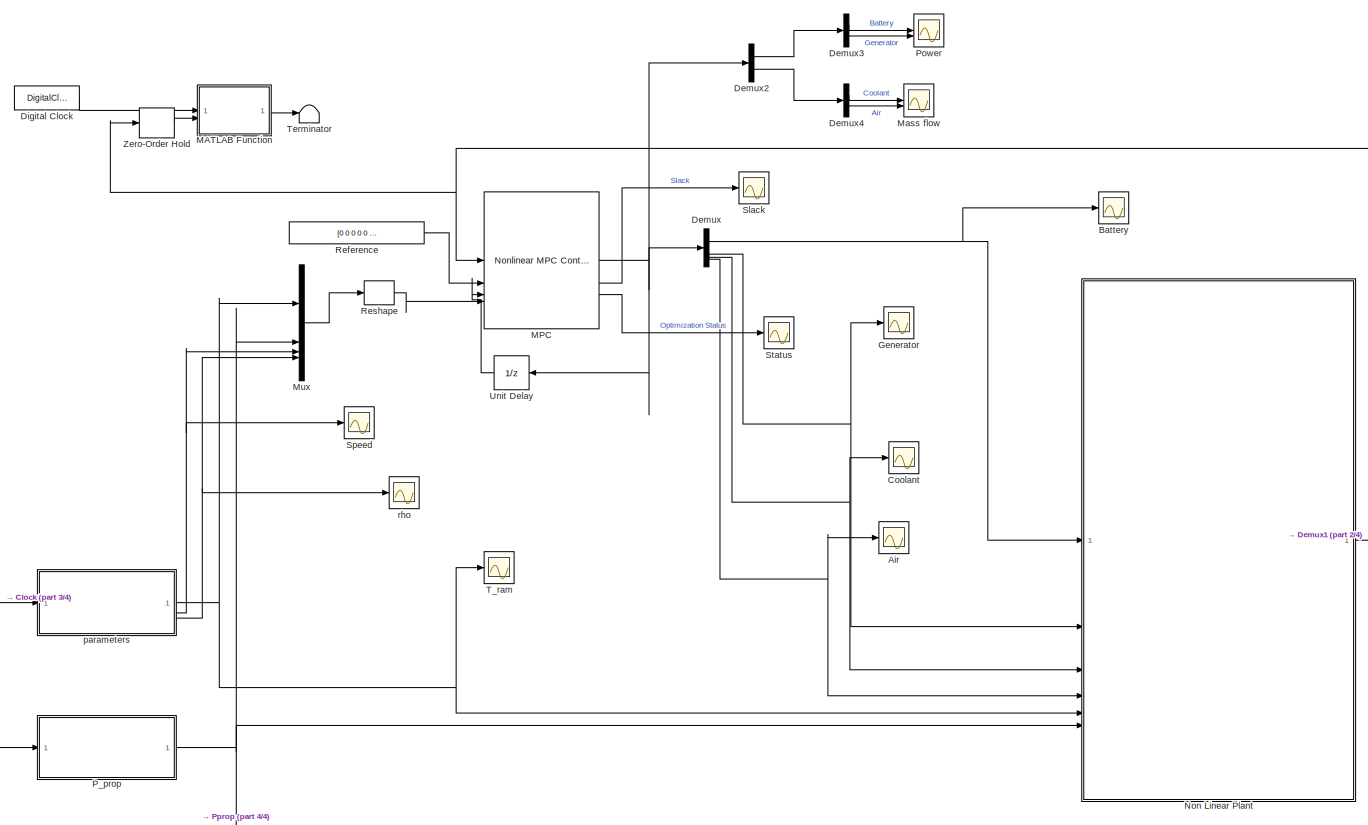
[diagram: root canvas - part 1/4, center side, full height]
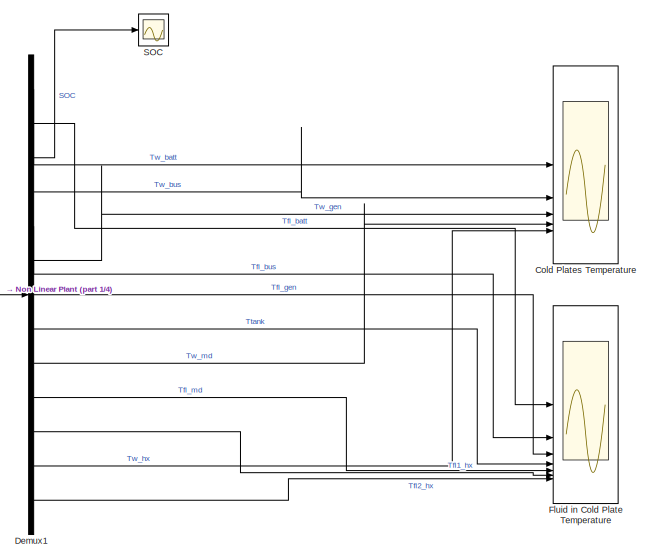
[diagram: root canvas - part 2/4, middle right region]
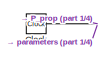
[diagram: root canvas - part 3/4, bottom left region]
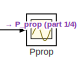
[diagram: root canvas - part 4/4, bottom left region]
MODEL slx_37117e313b44
KIND model
CONFIG AbsTol = auto
CONFIG EnableMultiTasking = off
CONFIG FixedStep = 0.5
CONFIG MaxStep = auto
CONFIG MinStep = auto
CONFIG RelTol = 1e-6
CONFIG SampleTimeConstraint = Unconstrained
CONFIG SolverName = VariableStepAuto
CONFIG StartTime = 0.0
CONFIG StopTime = 4440
BLOCK [Scope] Air
  Floating = off
  NumInputPorts = 1
  ScopeSpecificationString = Simulink.scopes.TimeScopeBlockCfg('CurrentConfiguration', extmgr.ConfigurationSet(extmgr.Configuration('Core','General UI',true),extmgr.Configuration('Core','Source UI',true),extmgr.Configuration('Sources','WiredSimulink',true,'DataLoggingVariableName','ScopeData5'),extmgr.Configuration('Visuals','Time Domain',true,'SerializedDisplays',{struct('MinYLimReal','4.42138','MaxYLimReal','7.45302','YLabe...<+1364ch>
BLOCK [Scope] Battery
  Floating = off
  NumInputPorts = 1
  ScopeSpecificationString = Simulink.scopes.TimeScopeBlockCfg('CurrentConfiguration', extmgr.ConfigurationSet(extmgr.Configuration('Core','General UI',true),extmgr.Configuration('Core','Source UI',true),extmgr.Configuration('Sources','WiredSimulink',true,'DataLoggingVariableName','ScopeData2'),extmgr.Configuration('Visuals','Time Domain',true,'SerializedDisplays',{struct('MinYLimReal','-59299.41706','MaxYLimReal','533694.753...<+1400ch>
BLOCK [Clock] Clock
BLOCK [Scope] Cold Plates Temperature
  Floating = off
  NumInputPorts = 5
  ScopeSpecificationString = Simulink.scopes.TimeScopeBlockCfg('CurrentConfiguration', extmgr.ConfigurationSet(extmgr.Configuration('Core','General UI',true,'FigureColor',[1 1 1]),extmgr.Configuration('Core','Source UI',true),extmgr.Configuration('Sources','WiredSimulink',true,'DataLoggingVariableName','ScopeData1'),extmgr.Configuration('Visuals','Time Domain',true,'SerializedDisplays',{struct('MinYLimReal','19.38609','MaxYLi...<+1699ch>
BLOCK [Scope] Coolant
  Floating = off
  NumInputPorts = 1
  ScopeSpecificationString = Simulink.scopes.TimeScopeBlockCfg('CurrentConfiguration', extmgr.ConfigurationSet(extmgr.Configuration('Core','General UI',true),extmgr.Configuration('Core','Source UI',true),extmgr.Configuration('Sources','WiredSimulink',true,'DataLoggingVariableName','ScopeData4'),extmgr.Configuration('Visuals','Time Domain',true,'SerializedDisplays',{struct('MinYLimReal','2.09667','MaxYLimReal','4.70696','YLabe...<+1364ch>
BLOCK [Demux] Demux
BLOCK [Demux] Demux1
  Outputs = 13
BLOCK [Demux] Demux2
  Outputs = 2
BLOCK [Demux] Demux3
  Outputs = 2
BLOCK [Demux] Demux4
  Outputs = 2
BLOCK [DigitalClock] Digital Clock
  SampleTime = Ts
BLOCK [Scope] Fluid in Cold Plate Temperature
  Floating = off
  NumInputPorts = 7
  ScopeSpecificationString = Simulink.scopes.TimeScopeBlockCfg('CurrentConfiguration', extmgr.ConfigurationSet(extmgr.Configuration('Core','General UI',true,'FigureColor',[1 1 1]),extmgr.Configuration('Core','Source UI',true),extmgr.Configuration('Sources','WiredSimulink',true,'DataLoggingVariableName','ScopeData2'),extmgr.Configuration('Visuals','Time Domain',true,'SerializedDisplays',{struct('MinYLimReal','19.84413','MaxYLi...<+1769ch>
BLOCK [Scope] Generator
  Floating = off
  NumInputPorts = 1
  ScopeSpecificationString = Simulink.scopes.TimeScopeBlockCfg('CurrentConfiguration', extmgr.ConfigurationSet(extmgr.Configuration('Core','General UI',true),extmgr.Configuration('Core','Source UI',true),extmgr.Configuration('Sources','WiredSimulink',true,'DataLoggingVariableName','ScopeData3'),extmgr.Configuration('Visuals','Time Domain',true,'SerializedDisplays',{struct('MinYLimReal','-26095.65152','MaxYLimReal','528032.850...<+1400ch>
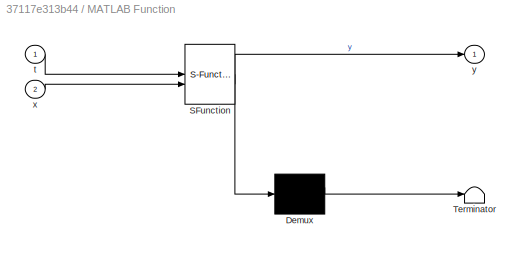
BLOCK [SubSystem] MATLAB Function
  ErrorFcn = Stateflow.Translate.translate
  LibrarySourceBlock = simulink/User-Defined\nFunctions/MATLAB Function
  PermitHierarchicalResolution = ExplicitOnly
  SFBlockType = MATLAB Function
  TreatAsAtomicUnit = on
BLOCK [Demux] MATLAB Function/ Demux 
  Outputs = 1
BLOCK [S-Function] MATLAB Function/ SFunction 
  EnableBusSupport = on
  FunctionName = sf_sfun
  PortCounts = [2 2]
  SFcnIsStateOwnerBlock = off
  SFunctionDeploymentMode = off
  Tag = Stateflow S-Function 3
BLOCK [Terminator] MATLAB Function/ Terminator 
BLOCK [Inport] MATLAB Function/t
BLOCK [Inport] MATLAB Function/x
  Port = 2
BLOCK [Outport] MATLAB Function/y
BLOCK [Reference] MPC  REF=mpclib/Nonlinear MPC Controller  (lib defined in mdl_ae329e0e0455)
  SourceBlock = mpclib/Nonlinear MPC Controller
  SourceType = NonlinearMPC
BLOCK [Scope] Mass flow
  Floating = off
  NumInputPorts = 2
  ScopeSpecificationString = Simulink.scopes.TimeScopeBlockCfg('CurrentConfiguration', extmgr.ConfigurationSet(extmgr.Configuration('Core','General UI',true,'FigureColor',[1 1 1]),extmgr.Configuration('Core','Source UI',true),extmgr.Configuration('Sources','WiredSimulink',true,'DataLoggingVariableName','scopeData_flow','DataLogging',true,'DataLoggingSaveFormat','StructureWithTime'),extmgr.Configuration('Visuals','Time Domain'...<+1763ch>
BLOCK [Mux] Mux
  DisplayOption = bar
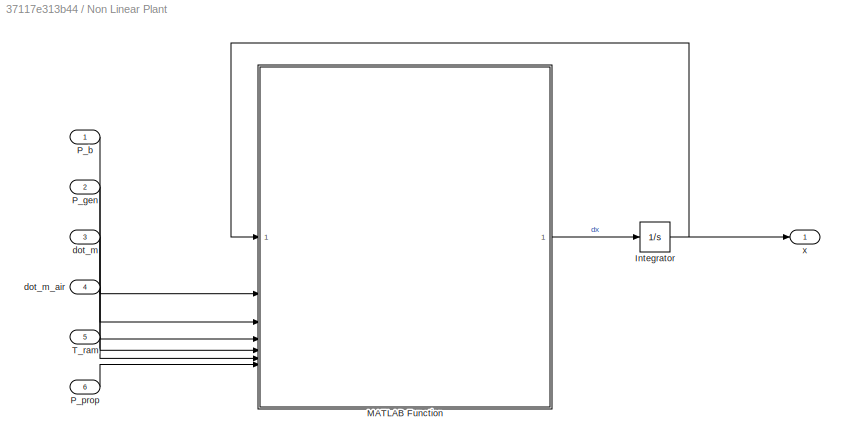
BLOCK [SubSystem] Non Linear Plant
BLOCK [Integrator] Non Linear Plant/Integrator
  InitialCondition = [20;20;1;20;20;20;20;20;20;20;20;20;20]
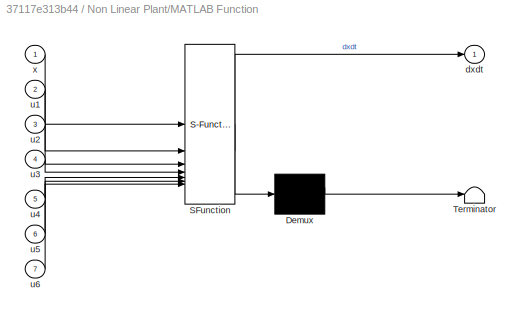
BLOCK [SubSystem] Non Linear Plant/MATLAB Function
  ErrorFcn = Stateflow.Translate.translate
  LibrarySourceBlock = simulink/User-Defined\nFunctions/MATLAB Function
  PermitHierarchicalResolution = ExplicitOnly
  SFBlockType = MATLAB Function
  TreatAsAtomicUnit = on
BLOCK [Demux] Non Linear Plant/MATLAB Function/ Demux 
  Outputs = 1
BLOCK [S-Function] Non Linear Plant/MATLAB Function/ SFunction 
  EnableBusSupport = on
  FunctionName = sf_sfun
  PortCounts = [7 2]
  SFcnIsStateOwnerBlock = off
  SFunctionDeploymentMode = off
  Tag = Stateflow S-Function 2
BLOCK [Terminator] Non Linear Plant/MATLAB Function/ Terminator 
BLOCK [Outport] Non Linear Plant/MATLAB Function/dxdt
BLOCK [Inport] Non Linear Plant/MATLAB Function/u1
  Port = 2
BLOCK [Inport] Non Linear Plant/MATLAB Function/u2
  Port = 3
BLOCK [Inport] Non Linear Plant/MATLAB Function/u3
  Port = 4
BLOCK [Inport] Non Linear Plant/MATLAB Function/u4
  Port = 5
BLOCK [Inport] Non Linear Plant/MATLAB Function/u5
  Port = 6
BLOCK [Inport] Non Linear Plant/MATLAB Function/u6
  Port = 7
BLOCK [Inport] Non Linear Plant/MATLAB Function/x
BLOCK [Inport] Non Linear Plant/P_b
BLOCK [Inport] Non Linear Plant/P_gen
  Port = 2
BLOCK [Inport] Non Linear Plant/P_prop
  Port = 6
BLOCK [Inport] Non Linear Plant/T_ram
  Port = 5
BLOCK [Inport] Non Linear Plant/dot_m
  Port = 3
BLOCK [Inport] Non Linear Plant/dot_m_air
  Port = 4
BLOCK [Outport] Non Linear Plant/x
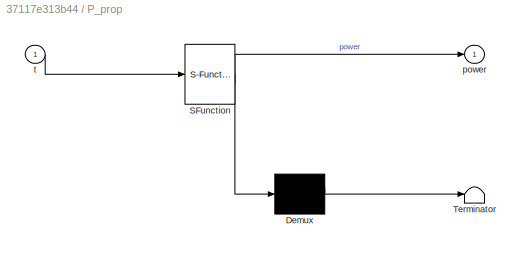
BLOCK [SubSystem] P_prop
  ErrorFcn = Stateflow.Translate.translate
  LibrarySourceBlock = simulink/User-Defined\nFunctions/MATLAB Function
  PermitHierarchicalResolution = ExplicitOnly
  SFBlockType = MATLAB Function
  TreatAsAtomicUnit = on
BLOCK [Demux] P_prop/ Demux 
  Outputs = 1
BLOCK [S-Function] P_prop/ SFunction 
  EnableBusSupport = on
  FunctionName = sf_sfun
  PortCounts = [1 2]
  SFcnIsStateOwnerBlock = off
  SFunctionDeploymentMode = off
  Tag = Stateflow S-Function 1
BLOCK [Terminator] P_prop/ Terminator 
BLOCK [Outport] P_prop/power
BLOCK [Inport] P_prop/t
BLOCK [Scope] Power
  Floating = off
  NumInputPorts = 2
  ScopeSpecificationString = Simulink.scopes.TimeScopeBlockCfg('CurrentConfiguration', extmgr.ConfigurationSet(extmgr.Configuration('Core','General UI',true,'FigureColor',[1 1 1]),extmgr.Configuration('Core','Source UI',true),extmgr.Configuration('Sources','WiredSimulink',true,'DataLoggingVariableName','scopeData_Power','DataLogging',true,'DataLoggingSaveFormat','StructureWithTime'),extmgr.Configuration('Visuals','Time Domain...<+1838ch>
BLOCK [Scope] Pprop
  Floating = off
  NumInputPorts = 1
  ScopeSpecificationString = Simulink.scopes.TimeScopeBlockCfg('CurrentConfiguration', extmgr.ConfigurationSet(extmgr.Configuration('Core','General UI',true),extmgr.Configuration('Core','Source UI',true),extmgr.Configuration('Sources','WiredSimulink',true,'DataLoggingVariableName','ScopeData1'),extmgr.Configuration('Visuals','Time Domain',true,'SerializedDisplays',{struct('MinYLimReal','-56625.00000','MaxYLimReal','712958.333...<+1726ch>
BLOCK [Constant] Reference
  Value = [0 0 0 0 0 0 0 0 0 0 0 0 0]
  VectorParams1D = off
BLOCK [Reshape] Reshape
  OutputDimensionality = Row vector (2-D)
BLOCK [Scope] SOC
  Floating = off
  NumInputPorts = 1
  ScopeSpecificationString = Simulink.scopes.TimeScopeBlockCfg('CurrentConfiguration', extmgr.ConfigurationSet(extmgr.Configuration('Core','General UI',true,'FigureColor',[1 1 1]),extmgr.Configuration('Core','Source UI',true),extmgr.Configuration('Sources','WiredSimulink',true,'DataLoggingVariableName','ScopeData3'),extmgr.Configuration('Visuals','Time Domain',true,'SerializedDisplays',{struct('MinYLimReal','0.32817','MaxYLim...<+1655ch>
BLOCK [Scope] Slack
  Floating = off
  NumInputPorts = 1
  ScopeSpecificationString = Simulink.scopes.TimeScopeBlockCfg('CurrentConfiguration', extmgr.ConfigurationSet(extmgr.Configuration('Core','General UI',true,'FigureColor',[1 1 1]),extmgr.Configuration('Core','Source UI',true),extmgr.Configuration('Sources','WiredSimulink',true,'DataLoggingVariableName','ScopeData1'),extmgr.Configuration('Visuals','Time Domain',true,'SerializedDisplays',{struct('MinYLimReal','-0.04011','MaxYLi...<+1730ch>
BLOCK [Scope] Speed
  Floating = off
  NumInputPorts = 1
  ScopeSpecificationString = Simulink.scopes.TimeScopeBlockCfg('CurrentConfiguration', extmgr.ConfigurationSet(extmgr.Configuration('Core','General UI',true),extmgr.Configuration('Core','Source UI',true),extmgr.Configuration('Sources','WiredSimulink',true,'DataLoggingVariableName','ScopeData1'),extmgr.Configuration('Visuals','Time Domain',true,'SerializedDisplays',{struct('MinYLimReal','-8.21517','MaxYLimReal','73.93651','YLa...<+1379ch>
BLOCK [Scope] Status
  Floating = off
  NumInputPorts = 1
  ScopeSpecificationString = Simulink.scopes.TimeScopeBlockCfg('CurrentConfiguration', extmgr.ConfigurationSet(extmgr.Configuration('Core','General UI',true,'FigureColor',[1 1 1]),extmgr.Configuration('Core','Source UI',true),extmgr.Configuration('Sources','WiredSimulink',true,'DataLoggingVariableName','scopeData_Status','DataLogging',true,'DataLoggingSaveFormat','StructureWithTime'),extmgr.Configuration('Visuals','Time Domai...<+1706ch>
BLOCK [Scope] T_ram
  Floating = off
  NumInputPorts = 1
  ScopeSpecificationString = Simulink.scopes.TimeScopeBlockCfg('CurrentConfiguration', extmgr.ConfigurationSet(extmgr.Configuration('Core','General UI',true),extmgr.Configuration('Core','Source UI',true),extmgr.Configuration('Sources','WiredSimulink',true,'DataLoggingVariableName','ScopeData4'),extmgr.Configuration('Visuals','Time Domain',true,'SerializedDisplays',{struct('MinYLimReal','6.13783','MaxYLimReal','16.03103','YLab...<+1376ch>
BLOCK [Terminator] Terminator
BLOCK [UnitDelay] Unit Delay
  HasFrameUpgradeWarning = on
  InitialCondition = u0
  SampleTime = -1
BLOCK [ZeroOrderHold] Zero-Order Hold
  SampleTime = Ts
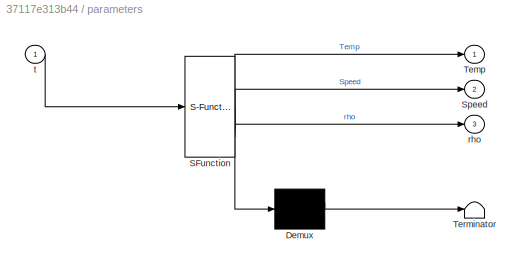
BLOCK [SubSystem] parameters
  ErrorFcn = Stateflow.Translate.translate
  LibrarySourceBlock = simulink/User-Defined\nFunctions/MATLAB Function
  PermitHierarchicalResolution = ExplicitOnly
  SFBlockType = MATLAB Function
  TreatAsAtomicUnit = on
BLOCK [Demux] parameters/ Demux 
  Outputs = 1
BLOCK [S-Function] parameters/ SFunction 
  EnableBusSupport = on
  FunctionName = sf_sfun
  PortCounts = [1 4]
  SFcnIsStateOwnerBlock = off
  SFunctionDeploymentMode = off
  Tag = Stateflow S-Function 10
BLOCK [Terminator] parameters/ Terminator 
BLOCK [Outport] parameters/Speed
  Port = 2
BLOCK [Outport] parameters/Temp
BLOCK [Outport] parameters/rho
  Port = 3
BLOCK [Inport] parameters/t
BLOCK [Scope] rho
  Floating = off
  NumInputPorts = 1
  ScopeSpecificationString = Simulink.scopes.TimeScopeBlockCfg('CurrentConfiguration', extmgr.ConfigurationSet(extmgr.Configuration('Core','General UI',true),extmgr.Configuration('Core','Source UI',true),extmgr.Configuration('Sources','WiredSimulink',true,'DataLoggingVariableName','ScopeData1'),extmgr.Configuration('Visuals','Time Domain',true,'SerializedDisplays',{struct('MinYLimReal','1.07077','MaxYLimReal','1.24214','YLabe...<+1371ch>
NET Clock:1 -> P_prop:1, parameters:1
LINE Demux1:1 -> Cold Plates Temperature:1
LINE Demux1:10 -> Fluid in Cold Plate Temperature:5
LINE Demux1:11 -> Fluid in Cold Plate Temperature:6
LINE Demux1:12 -> Cold Plates Temperature:5
LINE Demux1:13 -> Fluid in Cold Plate Temperature:7
LINE Demux1:2 -> Fluid in Cold Plate Temperature:1
LINE Demux1:3 -> SOC:1
LINE Demux1:4 -> Cold Plates Temperature:2
LINE Demux1:5 -> Fluid in Cold Plate Temperature:2
LINE Demux1:6 -> Cold Plates Temperature:3
LINE Demux1:7 -> Fluid in Cold Plate Temperature:3
LINE Demux1:8 -> Fluid in Cold Plate Temperature:4
LINE Demux1:9 -> Cold Plates Temperature:4
LINE Demux2:1 -> Demux3:1
LINE Demux2:2 -> Demux4:1
LINE Demux3:1 -> Power:1
LINE Demux3:2 -> Power:2
LINE Demux4:1 -> Mass flow:1
LINE Demux4:2 -> Mass flow:2
NET Demux:1 -> Battery:1, Non Linear Plant:1
NET Demux:2 -> Generator:1, Non Linear Plant:2
NET Demux:3 -> Coolant:1, Non Linear Plant:3
NET Demux:4 -> Air:1, Non Linear Plant:4
LINE Digital Clock:1 -> MATLAB Function:1
LINE MATLAB Function:1 -> Terminator:1
NET MPC:1 -> Demux2:1, Demux:1, Unit Delay:1
LINE MPC:2 -> Slack:1
LINE MPC:3 -> Status:1
LINE Mux:1 -> Reshape:1
NET Non Linear Plant/Integrator:1 -> Non Linear Plant/MATLAB Function:1, Non Linear Plant/x:1
LINE Non Linear Plant/MATLAB Function:1 -> Non Linear Plant/Integrator:1
LINE Non Linear Plant/P_b:1 -> Non Linear Plant/MATLAB Function:2
LINE Non Linear Plant/P_gen:1 -> Non Linear Plant/MATLAB Function:3
LINE Non Linear Plant/P_prop:1 -> Non Linear Plant/MATLAB Function:7
LINE Non Linear Plant/T_ram:1 -> Non Linear Plant/MATLAB Function:6
LINE Non Linear Plant/dot_m:1 -> Non Linear Plant/MATLAB Function:4
LINE Non Linear Plant/dot_m_air:1 -> Non Linear Plant/MATLAB Function:5
NET Non Linear Plant:1 -> Demux1:1, MPC:1, Zero-Order Hold:1
NET P_prop:1 -> Mux:2, Non Linear Plant:6, Pprop:1
LINE Reference:1 -> MPC:2
LINE Reshape:1 -> MPC:4
LINE Unit Delay:1 -> MPC:3
LINE Zero-Order Hold:1 -> MATLAB Function:2
NET parameters:1 -> Mux:1, Non Linear Plant:5, T_ram:1
NET parameters:2 -> Mux:3, Speed:1
NET parameters:3 -> Mux:4, rho:1
note: NET lines group one-source signal fan-out (src -> all destinations, sorted); 1:1 wires keep LINE
CHART P_prop states=1 transitions=1
  STATE_LABEL 'eML_blk_kernel()'
  STATE_LABEL 'SCRIPT:\nfunction power = P_prop(t)\n    T_off = 60;\n    t_cruise = 420;\n    t_descent = 3660;\n    t_landing = 4020;\n    t_taxi = 4080;\n    t_final = 4440;\n    \n    step = 636e3;\n    P_slope_1 = (262e3 - 636e3)/(t_cruise - T_off);\n    P_slope_2 = (114e3 - 262e3)/(t_landing - t_descent);\n    P_slope_3 = (158e3 - 114e3)/(t_taxi - t_landing);\n    P_slope_4 = (40e3 - 158e3)/(t_final - t_taxi);\n    \n    ...<+658ch>'
CHART Non Linear Plant/MATLAB Function states=1 transitions=1
  STATE_LABEL 'eML_blk_kernel()'
  STATE_LABEL 'SCRIPT:\nfunction dxdt = fcn(x,u1,u2,u3,u4,u5,u6)\n\n dxdt = aircraftDynamicsCT(x,[u1;u2;u3;u4;u5;u6]);\n'
CHART MATLAB Function states=1 transitions=1
  STATE_LABEL 'eML_blk_kernel()'
  STATE_LABEL "SCRIPT:\nfunction y = LinUpdate(t, x)\n%#codegen\ncoder.extrinsic('aircraft_dynamics_linear');\n\naircraft_dynamics_linear('update', t, x);\n\ny = 0;\nend"
CHART parameters states=1 transitions=1
  STATE_LABEL 'eML_blk_kernel()'
  STATE_LABEL 'SCRIPT:\nfunction [Temp, Speed, rho] = parameters(t)\n    %% Calculates aircraft altitude in ft and m\n\n    T_off = 60;\n    t_cruise = 420;\n    t_landing = 3660;\n    t_final = 4440;\n\n    r_slope = (4000-50)/(t_cruise-T_off);\n    r_slope2 =(0-4000)/(t_final-t_landing);\n    \n    step = 50;\n    \n    r_ramp1 = zeros(size(t));\n    r_ramp1(t >= T_off) = r_slope * (t(t >= T_off) - T_off);\n    \n    r_ramp2 =...<+1927ch>'
CHART  states=0 transitions=0
CHART  states=0 transitions=0
CHART  states=0 transitions=0
CHART  states=0 transitions=0
